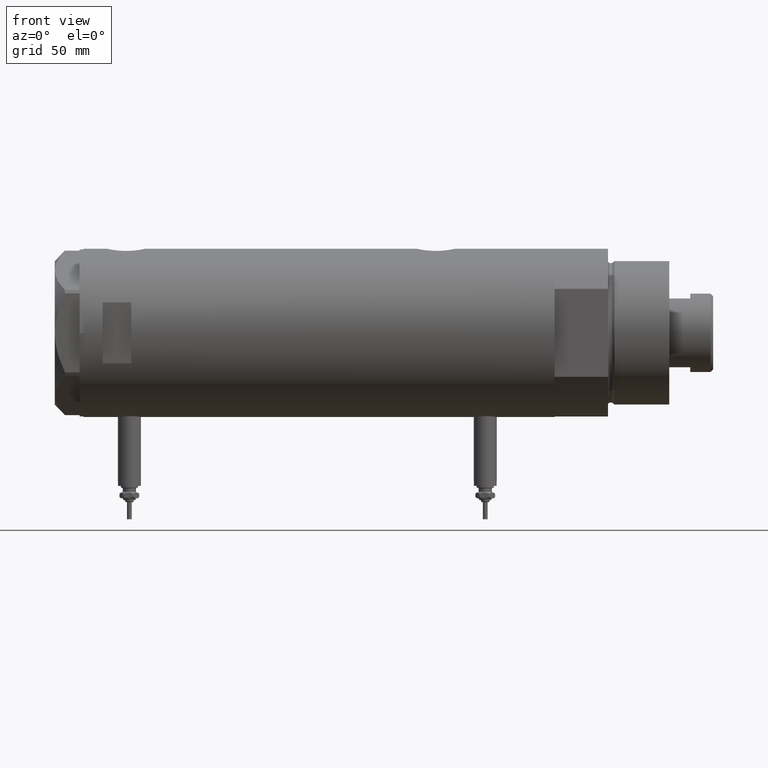
[diagram: clean part render]
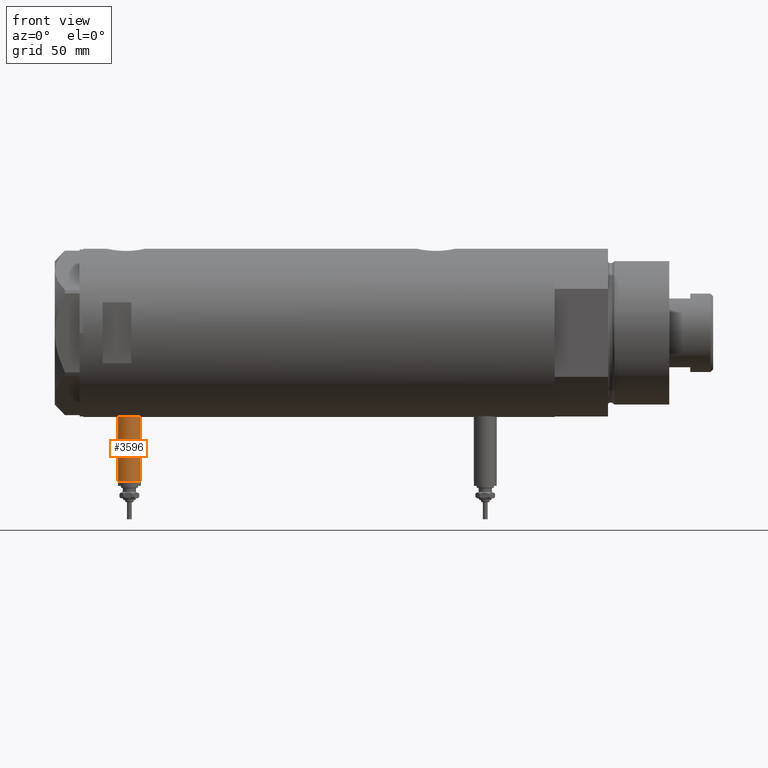
[diagram: same view with one face highlighted and labeled with its STEP entity id]
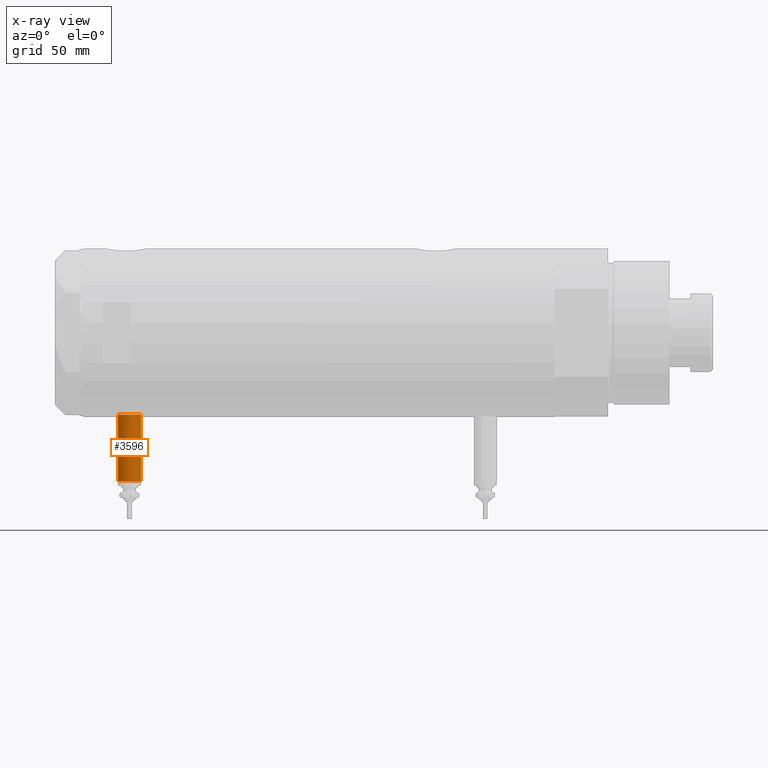
[diagram: x-ray of the same camera — body ghosted, the highlighted face saturated]
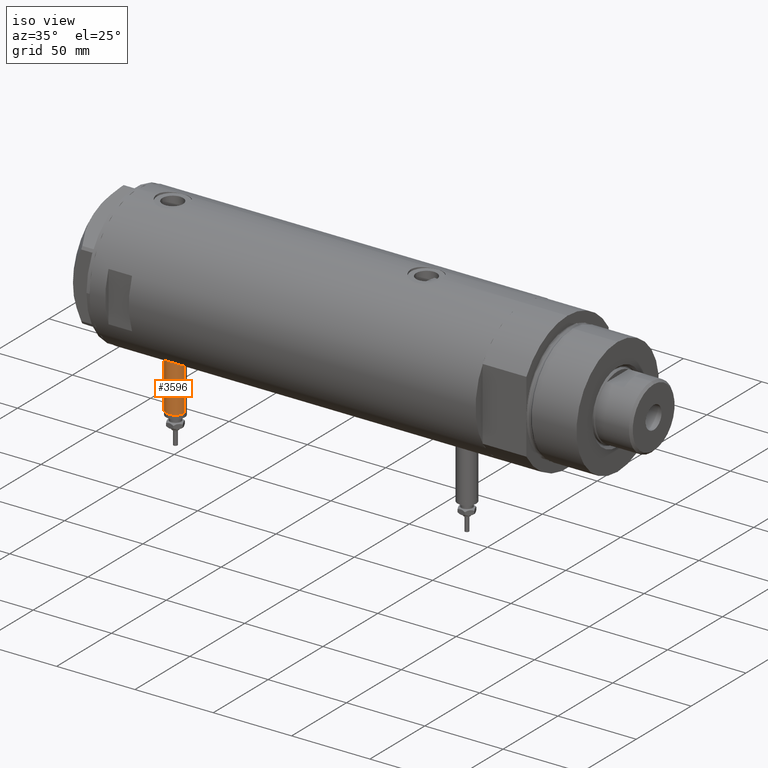
[diagram: same view with one face highlighted and labeled with its STEP entity id]
A machine part, front view. The second image highlights one B-rep face of the part: STEP entity #3596.
The next image is the same camera in x-ray: the body ghosted, the highlighted face saturated — about 0% of this face is hidden behind the body in this view.
A second angle (iso view) of the same face is appended — the face is thin or edge-on in the first view.
In plain terms, the highlighted cylindrical surface (edge-blend (fillet) strip) has radius 6 mm, axis along (0, 0, 1).
Its self-contained STEP definition (entity closure, byte-faithful):
#201 = CARTESIAN_POINT ( 'NONE',  ( -77.50000000000000000, 7.347880794884101001E-16, 105.2000000000000028 ) ) ;
#417 = CARTESIAN_POINT ( 'NONE',  ( -42.79999999999999716, 0.000000000000000000, 93.20000000000001705 ) ) ;
#709 = DIRECTION ( 'NONE',  ( 0.000000000000000000, 0.000000000000000000, 1.000000000000000000 ) ) ;
#742 = ORIENTED_EDGE ( 'NONE', *, *, #3091, .F. ) ;
#799 = EDGE_CURVE ( 'NONE', #5138, #1569, #4757, .T. ) ;
#817 = CARTESIAN_POINT ( 'NONE',  ( -77.50000000000000000, 0.000000000000000000, 99.20000000000001705 ) ) ;
#838 = AXIS2_PLACEMENT_3D ( 'NONE', #817, #2630, #4989 ) ;
#1232 = CIRCLE ( 'NONE', #1705, 5.999999999999991118 ) ;
#1504 = CARTESIAN_POINT ( 'NONE',  ( -77.50000000000000000, 7.347880794884104945E-16, 105.2000000000000028 ) ) ;
#1569 = VERTEX_POINT ( 'NONE', #417 ) ;
#1623 = CARTESIAN_POINT ( 'NONE',  ( -77.50000000000000000, 0.000000000000000000, 93.20000000000001705 ) ) ;
#1705 = AXIS2_PLACEMENT_3D ( 'NONE', #2611, #3427, #4362 ) ;
#1740 = CYLINDRICAL_SURFACE ( 'NONE', #838, 5.999999999999991118 ) ;
#1930 = LINE ( 'NONE', #1504, #5275 ) ;
#2070 = CARTESIAN_POINT ( 'NONE',  ( -77.50000000000000000, 0.000000000000000000, 93.20000000000001705 ) ) ;
#2514 = DIRECTION ( 'NONE',  ( 1.000000000000000000, -0.000000000000000000, -0.000000000000000000 ) ) ;
#2559 = AXIS2_PLACEMENT_3D ( 'NONE', #3010, #4858, #709 ) ;
#2611 = CARTESIAN_POINT ( 'NONE',  ( -77.50000000000000000, 0.000000000000000000, 99.20000000000001705 ) ) ;
#2630 = DIRECTION ( 'NONE',  ( 1.000000000000000000, -0.000000000000000000, -0.000000000000000000 ) ) ;
#2787 = EDGE_CURVE ( 'NONE', #1569, #4444, #4396, .T. ) ;
#3010 = CARTESIAN_POINT ( 'NONE',  ( -42.79999999999999716, 0.000000000000000000, 99.20000000000001705 ) ) ;
#3091 = EDGE_CURVE ( 'NONE', #4759, #4444, #1930, .T. ) ;
#3190 = CARTESIAN_POINT ( 'NONE',  ( -42.79999999999999716, 7.347880794884101001E-16, 105.2000000000000028 ) ) ;
#3427 = DIRECTION ( 'NONE',  ( -1.000000000000000000, 0.000000000000000000, 0.000000000000000000 ) ) ;
#3593 = FACE_OUTER_BOUND ( 'NONE', #4731, .T. ) ;
#3596 = ADVANCED_FACE ( 'NONE', ( #3593 ), #1740, .T. ) ;
#3862 = ORIENTED_EDGE ( 'NONE', *, *, #2787, .T. ) ;
#3971 = ORIENTED_EDGE ( 'NONE', *, *, #799, .T. ) ;
#4147 = ORIENTED_EDGE ( 'NONE', *, *, #4756, .F. ) ;
#4362 = DIRECTION ( 'NONE',  ( 0.000000000000000000, 0.000000000000000000, 1.000000000000000000 ) ) ;
#4396 = CIRCLE ( 'NONE', #2559, 5.999999999999991118 ) ;
#4444 = VERTEX_POINT ( 'NONE', #3190 ) ;
#4569 = VECTOR ( 'NONE', #2514, 1000.000000000000000 ) ;
#4731 = EDGE_LOOP ( 'NONE', ( #742, #4147, #3971, #3862 ) ) ;
#4756 = EDGE_CURVE ( 'NONE', #5138, #4759, #1232, .T. ) ;
#4757 = LINE ( 'NONE', #1623, #4569 ) ;
#4759 = VERTEX_POINT ( 'NONE', #201 ) ;
#4858 = DIRECTION ( 'NONE',  ( -1.000000000000000000, 0.000000000000000000, 0.000000000000000000 ) ) ;
#4989 = DIRECTION ( 'NONE',  ( 0.000000000000000000, 0.000000000000000000, -1.000000000000000000 ) ) ;
#5138 = VERTEX_POINT ( 'NONE', #2070 ) ;
#5275 = VECTOR ( 'NONE', #5597, 1000.000000000000000 ) ;
#5597 = DIRECTION ( 'NONE',  ( 1.000000000000000000, -0.000000000000000000, -0.000000000000000000 ) ) ;